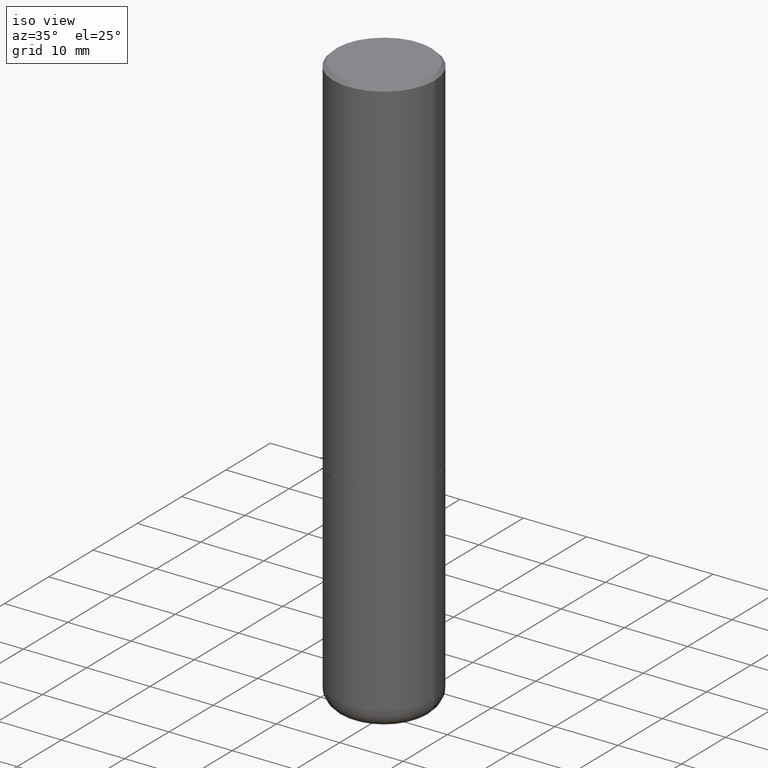
[diagram: clean part render]
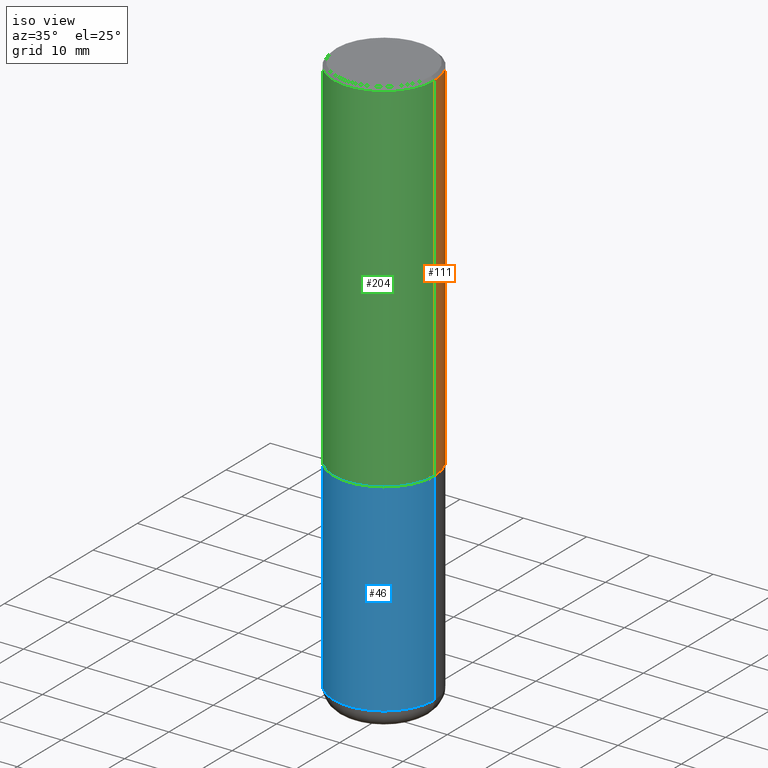
[diagram: same view with three faces highlighted in distinct colors, each labeled with its STEP entity id]
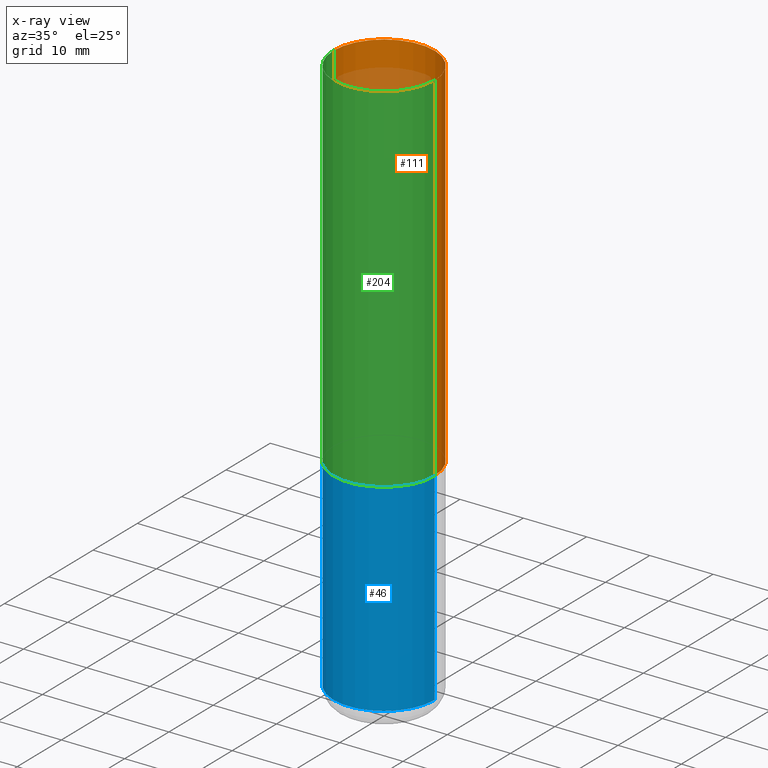
[diagram: x-ray of the same camera — body ghosted, the three highlighted faces saturated]
A machine part, iso view with three faces highlighted in distinct colors.
The next image is the same camera in x-ray (body ghosted, the three faces saturated) — at least one of them is partly hidden behind the body in this view.
Their STEP definitions:

[orange] entity #111 — the highlighted cylindrical surface (partial cylindrical patch) has radius 7.9997 mm, axis along (-0, 0, 1).
#13 = CARTESIAN_POINT ( 'NONE',  ( -0.3149500000000001743, 2.237854346276436774E-15, -1.549218606675783237E-29 ) ) ;
#27 = VECTOR ( 'NONE', #187, 39.37007874015748143 ) ;
#43 = ORIENTED_EDGE ( 'NONE', *, *, #104, .F. ) ;
#45 = CARTESIAN_POINT ( 'NONE',  ( 4.890937612370289799E-31, -6.982962677686315028E-17, -0.02000000000000006981 ) ) ;
#47 = DIRECTION ( 'NONE',  ( 1.000000000000000000, -6.982962677686267499E-15, 0.000000000000000000 ) ) ;
#58 = VERTEX_POINT ( 'NONE', #269 ) ;
#60 = CIRCLE ( 'NONE', #257, 0.3149500000000000077 ) ;
#61 = VERTEX_POINT ( 'NONE', #385 ) ;
#70 = AXIS2_PLACEMENT_3D ( 'NONE', #192, #312, #286 ) ;
#71 = CARTESIAN_POINT ( 'NONE',  ( 0.3149500000000001743, -2.199284095337290660E-15, 1.535751875536930690E-29 ) ) ;
#78 = DIRECTION ( 'NONE',  ( -2.445468806185136597E-29, 3.491481338843145583E-15, 1.000000000000000000 ) ) ;
#83 = ORIENTED_EDGE ( 'NONE', *, *, #267, .F. ) ;
#99 = EDGE_CURVE ( 'NONE', #272, #61, #340, .T. ) ;
#104 = EDGE_CURVE ( 'NONE', #58, #190, #60, .T. ) ;
#110 = DIRECTION ( 'NONE',  ( 1.000000000000000000, -6.982962677686266711E-15, 0.000000000000000000 ) ) ;
#111 = ADVANCED_FACE ( 'NONE', ( #368 ), #310, .T. ) ;
#183 = LINE ( 'NONE', #13, #27 ) ;
#187 = DIRECTION ( 'NONE',  ( -2.445468806185136877E-29, 3.491481338843145188E-15, 1.000000000000000000 ) ) ;
#189 = CARTESIAN_POINT ( 'NONE',  ( 5.485186532273261485E-29, -7.831392643025175821E-15, -2.242999999999999883 ) ) ;
#190 = VERTEX_POINT ( 'NONE', #224 ) ;
#192 = CARTESIAN_POINT ( 'NONE',  ( 0.000000000000000000, 0.000000000000000000, 0.000000000000000000 ) ) ;
#218 = AXIS2_PLACEMENT_3D ( 'NONE', #189, #302, #47 ) ;
#224 = CARTESIAN_POINT ( 'NONE',  ( -0.3149500000000000077, 2.129454468560426573E-15, -0.02000000000000006981 ) ) ;
#236 = VECTOR ( 'NONE', #280, 39.37007874015748143 ) ;
#241 = EDGE_CURVE ( 'NONE', #61, #190, #183, .T. ) ;
#257 = AXIS2_PLACEMENT_3D ( 'NONE', #45, #78, #110 ) ;
#267 = EDGE_CURVE ( 'NONE', #272, #58, #311, .T. ) ;
#269 = CARTESIAN_POINT ( 'NONE',  ( 0.3149500000000000077, -2.230543471175007450E-15, -0.02000000000000006981 ) ) ;
#272 = VERTEX_POINT ( 'NONE', #401 ) ;
#280 = DIRECTION ( 'NONE',  ( -2.445468806185136877E-29, 3.491481338843145188E-15, 1.000000000000000000 ) ) ;
#286 = DIRECTION ( 'NONE',  ( 1.000000000000000000, -6.982962677686265922E-15, 4.876176775795935232E-29 ) ) ;
#302 = DIRECTION ( 'NONE',  ( -2.445468806185136597E-29, 3.491481338843145583E-15, 1.000000000000000000 ) ) ;
#310 = CYLINDRICAL_SURFACE ( 'NONE', #70, 0.3149500000000001743 ) ;
#311 = LINE ( 'NONE', #71, #236 ) ;
#312 = DIRECTION ( 'NONE',  ( -2.445468806185136597E-29, 3.491481338843145583E-15, 1.000000000000000000 ) ) ;
#340 = CIRCLE ( 'NONE', #218, 0.3149500000000002853 ) ;
#345 = EDGE_LOOP ( 'NONE', ( #351, #364, #43, #83 ) ) ;
#351 = ORIENTED_EDGE ( 'NONE', *, *, #99, .T. ) ;
#364 = ORIENTED_EDGE ( 'NONE', *, *, #241, .T. ) ;
#368 = FACE_OUTER_BOUND ( 'NONE', #345, .T. ) ;
#385 = CARTESIAN_POINT ( 'NONE',  ( -0.3149500000000002853, -1.712756788624580222E-15, -2.242999999999999883 ) ) ;
#401 = CARTESIAN_POINT ( 'NONE',  ( 0.3149500000000002853, -1.003067673836246727E-14, -2.242999999999999883 ) ) ;

[blue] entity #46 — the highlighted cylindrical surface (partial cylindrical patch) has radius 7.9997 mm, axis along (-0, 0, 1).
#9 = CARTESIAN_POINT ( 'NONE',  ( 0.3149500000000000077, -2.199284095337289871E-15, 1.535751875536930130E-29 ) ) ;
#16 = CARTESIAN_POINT ( 'NONE',  ( 5.487632001079445967E-29, -7.834884124364017250E-15, -2.243999999999999773 ) ) ;
#22 = ORIENTED_EDGE ( 'NONE', *, *, #330, .F. ) ;
#46 = ADVANCED_FACE ( 'NONE', ( #207 ), #327, .T. ) ;
#50 = CARTESIAN_POINT ( 'NONE',  ( -0.3149499999999998967, -9.995947116896063452E-15, -3.503899999999999793 ) ) ;
#79 = VECTOR ( 'NONE', #114, 39.37007874015748143 ) ;
#81 = CIRCLE ( 'NONE', #292, 0.3149500000000000077 ) ;
#100 = ORIENTED_EDGE ( 'NONE', *, *, #384, .T. ) ;
#108 = ORIENTED_EDGE ( 'NONE', *, *, #304, .F. ) ;
#114 = DIRECTION ( 'NONE',  ( -2.445468806185136877E-29, 3.491481338843145188E-15, 1.000000000000000000 ) ) ;
#131 = CARTESIAN_POINT ( 'NONE',  ( 0.3149499999999998967, -1.443308555850978615E-14, -3.503899999999999793 ) ) ;
#161 = DIRECTION ( 'NONE',  ( -2.445468806185136877E-29, 3.491481338843145188E-15, 1.000000000000000000 ) ) ;
#176 = CARTESIAN_POINT ( 'NONE',  ( 0.000000000000000000, 0.000000000000000000, 0.000000000000000000 ) ) ;
#185 = AXIS2_PLACEMENT_3D ( 'NONE', #176, #208, #261 ) ;
#191 = CARTESIAN_POINT ( 'NONE',  ( 0.3149500000000000077, -1.003416821970130712E-14, -2.243999999999999773 ) ) ;
#199 = LINE ( 'NONE', #414, #315 ) ;
#202 = VERTEX_POINT ( 'NONE', #131 ) ;
#207 = FACE_OUTER_BOUND ( 'NONE', #216, .T. ) ;
#208 = DIRECTION ( 'NONE',  ( -2.445468806185136597E-29, 3.491481338843145583E-15, 1.000000000000000000 ) ) ;
#210 = AXIS2_PLACEMENT_3D ( 'NONE', #16, #246, #350 ) ;
#216 = EDGE_LOOP ( 'NONE', ( #22, #100, #316, #108 ) ) ;
#229 = CARTESIAN_POINT ( 'NONE',  ( -0.3149500000000000077, -7.796488447491823147E-15, -2.243999999999999773 ) ) ;
#235 = VERTEX_POINT ( 'NONE', #191 ) ;
#246 = DIRECTION ( 'NONE',  ( -2.445468806185136597E-29, 3.491481338843145583E-15, 1.000000000000000000 ) ) ;
#261 = DIRECTION ( 'NONE',  ( 1.000000000000000000, -6.982962677686266711E-15, 4.876176775795936353E-29 ) ) ;
#263 = DIRECTION ( 'NONE',  ( 1.000000000000000000, -6.982962677686263555E-15, 0.000000000000000000 ) ) ;
#283 = CIRCLE ( 'NONE', #210, 0.3149500000000000077 ) ;
#292 = AXIS2_PLACEMENT_3D ( 'NONE', #294, #418, #263 ) ;
#294 = CARTESIAN_POINT ( 'NONE',  ( 8.568678149992099474E-29, -1.223380146317249786E-14, -3.503899999999999793 ) ) ;
#296 = EDGE_CURVE ( 'NONE', #202, #235, #397, .T. ) ;
#303 = VERTEX_POINT ( 'NONE', #50 ) ;
#304 = EDGE_CURVE ( 'NONE', #338, #235, #283, .T. ) ;
#315 = VECTOR ( 'NONE', #161, 39.37007874015748143 ) ;
#316 = ORIENTED_EDGE ( 'NONE', *, *, #296, .T. ) ;
#327 = CYLINDRICAL_SURFACE ( 'NONE', #185, 0.3149500000000000077 ) ;
#330 = EDGE_CURVE ( 'NONE', #303, #338, #199, .T. ) ;
#338 = VERTEX_POINT ( 'NONE', #229 ) ;
#350 = DIRECTION ( 'NONE',  ( 1.000000000000000000, -6.982962677686266711E-15, 0.000000000000000000 ) ) ;
#384 = EDGE_CURVE ( 'NONE', #303, #202, #81, .T. ) ;
#397 = LINE ( 'NONE', #9, #79 ) ;
#414 = CARTESIAN_POINT ( 'NONE',  ( -0.3149500000000000077, 2.237854346276435590E-15, -1.549218606675782676E-29 ) ) ;
#418 = DIRECTION ( 'NONE',  ( -2.445468806185136597E-29, 3.491481338843145583E-15, 1.000000000000000000 ) ) ;

[green] entity #204 — the highlighted cylindrical surface (partial cylindrical patch) has radius 7.9997 mm, axis along (-0, 0, 1).
#13 = CARTESIAN_POINT ( 'NONE',  ( -0.3149500000000001743, 2.237854346276436774E-15, -1.549218606675783237E-29 ) ) ;
#14 = CARTESIAN_POINT ( 'NONE',  ( 5.485186532273261485E-29, -7.831392643025175821E-15, -2.242999999999999883 ) ) ;
#27 = VECTOR ( 'NONE', #187, 39.37007874015748143 ) ;
#41 = DIRECTION ( 'NONE',  ( 1.000000000000000000, -6.982962677686265922E-15, 4.876176775795935232E-29 ) ) ;
#44 = DIRECTION ( 'NONE',  ( 1.000000000000000000, -6.982962677686266711E-15, 0.000000000000000000 ) ) ;
#53 = ORIENTED_EDGE ( 'NONE', *, *, #188, .T. ) ;
#58 = VERTEX_POINT ( 'NONE', #269 ) ;
#61 = VERTEX_POINT ( 'NONE', #385 ) ;
#63 = CIRCLE ( 'NONE', #132, 0.3149500000000002853 ) ;
#71 = CARTESIAN_POINT ( 'NONE',  ( 0.3149500000000001743, -2.199284095337290660E-15, 1.535751875536930690E-29 ) ) ;
#132 = AXIS2_PLACEMENT_3D ( 'NONE', #14, #213, #240 ) ;
#153 = ORIENTED_EDGE ( 'NONE', *, *, #267, .T. ) ;
#158 = ORIENTED_EDGE ( 'NONE', *, *, #241, .F. ) ;
#175 = CYLINDRICAL_SURFACE ( 'NONE', #355, 0.3149500000000001743 ) ;
#183 = LINE ( 'NONE', #13, #27 ) ;
#187 = DIRECTION ( 'NONE',  ( -2.445468806185136877E-29, 3.491481338843145188E-15, 1.000000000000000000 ) ) ;
#188 = EDGE_CURVE ( 'NONE', #61, #272, #63, .T. ) ;
#190 = VERTEX_POINT ( 'NONE', #224 ) ;
#204 = ADVANCED_FACE ( 'NONE', ( #328 ), #175, .T. ) ;
#213 = DIRECTION ( 'NONE',  ( -2.445468806185136597E-29, 3.491481338843145583E-15, 1.000000000000000000 ) ) ;
#221 = CARTESIAN_POINT ( 'NONE',  ( 4.890937612370289799E-31, -6.982962677686315028E-17, -0.02000000000000006981 ) ) ;
#224 = CARTESIAN_POINT ( 'NONE',  ( -0.3149500000000000077, 2.129454468560426573E-15, -0.02000000000000006981 ) ) ;
#236 = VECTOR ( 'NONE', #280, 39.37007874015748143 ) ;
#240 = DIRECTION ( 'NONE',  ( 1.000000000000000000, -6.982962677686267499E-15, 0.000000000000000000 ) ) ;
#241 = EDGE_CURVE ( 'NONE', #61, #190, #183, .T. ) ;
#266 = CARTESIAN_POINT ( 'NONE',  ( 0.000000000000000000, 0.000000000000000000, 0.000000000000000000 ) ) ;
#267 = EDGE_CURVE ( 'NONE', #272, #58, #311, .T. ) ;
#269 = CARTESIAN_POINT ( 'NONE',  ( 0.3149500000000000077, -2.230543471175007450E-15, -0.02000000000000006981 ) ) ;
#272 = VERTEX_POINT ( 'NONE', #401 ) ;
#280 = DIRECTION ( 'NONE',  ( -2.445468806185136877E-29, 3.491481338843145188E-15, 1.000000000000000000 ) ) ;
#290 = EDGE_CURVE ( 'NONE', #190, #58, #387, .T. ) ;
#311 = LINE ( 'NONE', #71, #236 ) ;
#326 = EDGE_LOOP ( 'NONE', ( #158, #53, #153, #367 ) ) ;
#328 = FACE_OUTER_BOUND ( 'NONE', #326, .T. ) ;
#355 = AXIS2_PLACEMENT_3D ( 'NONE', #266, #391, #41 ) ;
#367 = ORIENTED_EDGE ( 'NONE', *, *, #290, .F. ) ;
#385 = CARTESIAN_POINT ( 'NONE',  ( -0.3149500000000002853, -1.712756788624580222E-15, -2.242999999999999883 ) ) ;
#386 = AXIS2_PLACEMENT_3D ( 'NONE', #221, #394, #44 ) ;
#387 = CIRCLE ( 'NONE', #386, 0.3149500000000000077 ) ;
#391 = DIRECTION ( 'NONE',  ( -2.445468806185136597E-29, 3.491481338843145583E-15, 1.000000000000000000 ) ) ;
#394 = DIRECTION ( 'NONE',  ( -2.445468806185136597E-29, 3.491481338843145583E-15, 1.000000000000000000 ) ) ;
#401 = CARTESIAN_POINT ( 'NONE',  ( 0.3149500000000002853, -1.003067673836246727E-14, -2.242999999999999883 ) ) ;